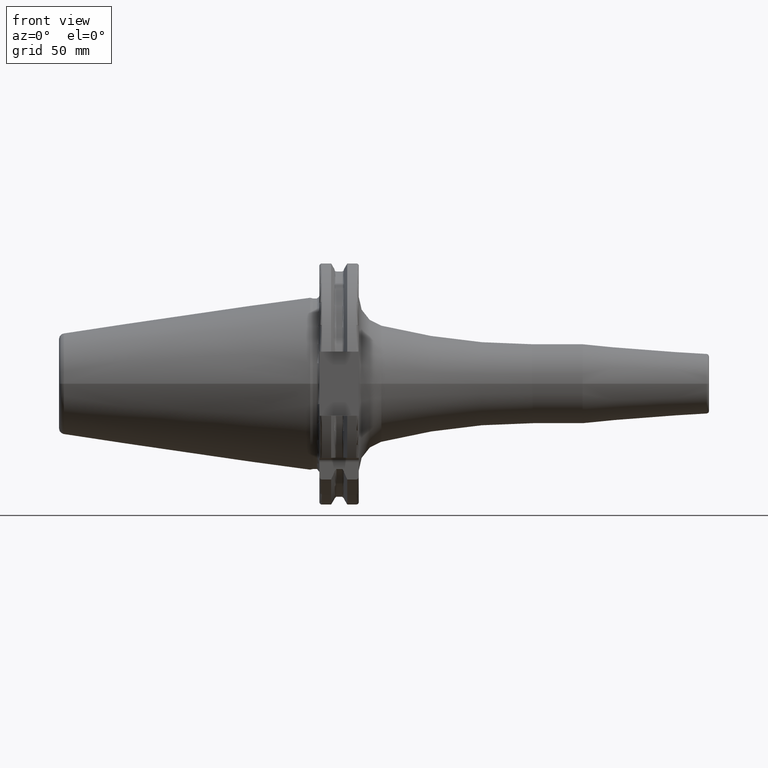
[diagram: clean part render]
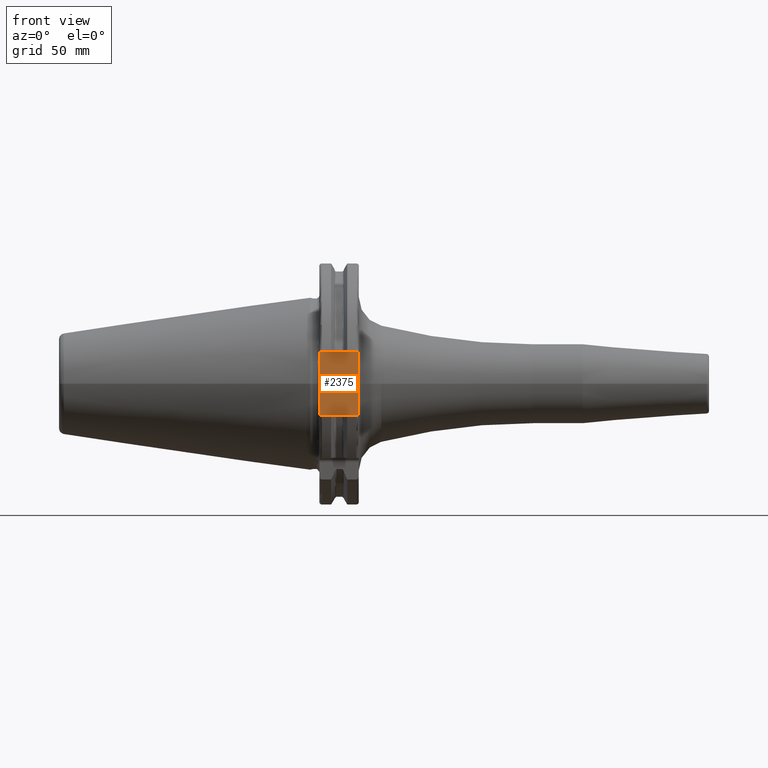
[diagram: same view with one face highlighted and labeled with its STEP entity id]
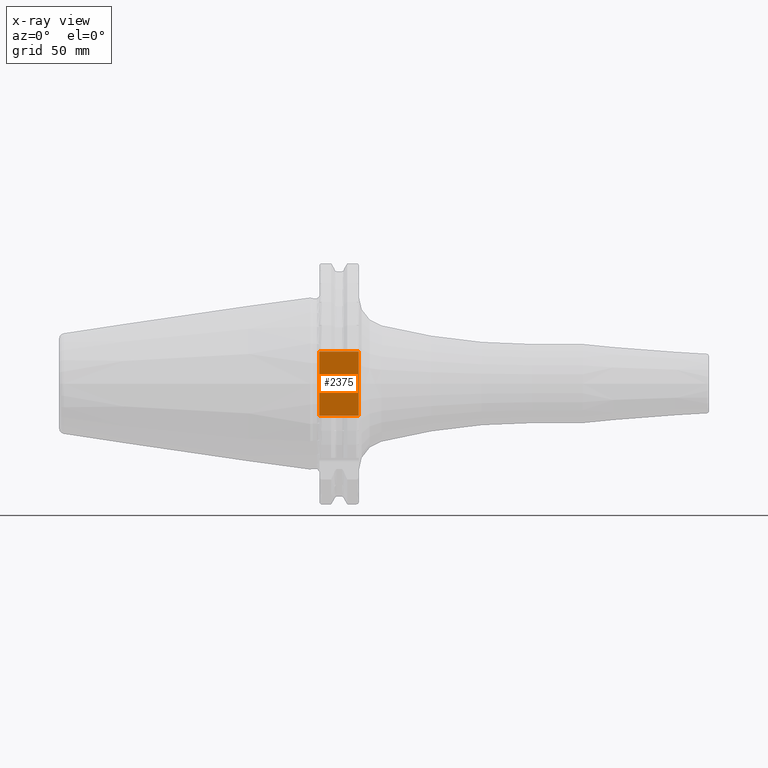
[diagram: x-ray of the same camera — body ghosted, the highlighted face saturated]
A machine part, front view. The second image highlights one B-rep face of the part: STEP entity #2375.
The next image is the same camera in x-ray: the body ghosted, the highlighted face saturated — about 0% of this face is hidden behind the body in this view.
In plain terms, the highlighted planar face has unit normal (0, 1, 0).
Its self-contained STEP definition (entity closure, byte-faithful):
#138=DIRECTION('',(0.E0,0.E0,1.E0));
#139=VECTOR('',#138,2.58E1);
#140=CARTESIAN_POINT('',(1.905E1,-3.75E1,-1.29E1));
#141=LINE('',#140,#139);
#220=DIRECTION('',(0.E0,0.E0,1.E0));
#221=VECTOR('',#220,2.58E1);
#222=CARTESIAN_POINT('',(3.2E0,-3.75E1,-1.29E1));
#223=LINE('',#222,#221);
#347=DIRECTION('',(-1.E0,0.E0,0.E0));
#348=VECTOR('',#347,1.585E1);
#349=CARTESIAN_POINT('',(1.905E1,-3.75E1,1.29E1));
#350=LINE('',#349,#348);
#876=DIRECTION('',(-1.E0,0.E0,0.E0));
#877=VECTOR('',#876,1.585E1);
#878=CARTESIAN_POINT('',(1.905E1,-3.75E1,-1.29E1));
#879=LINE('',#878,#877);
#1357=CARTESIAN_POINT('',(1.905E1,-3.75E1,-1.29E1));
#1359=VERTEX_POINT('',#1357);
#1360=CARTESIAN_POINT('',(1.905E1,-3.75E1,1.29E1));
#1361=VERTEX_POINT('',#1360);
#1385=CARTESIAN_POINT('',(3.2E0,-3.75E1,-1.29E1));
#1387=VERTEX_POINT('',#1385);
#1388=CARTESIAN_POINT('',(3.2E0,-3.75E1,1.29E1));
#1389=VERTEX_POINT('',#1388);
#2364=CARTESIAN_POINT('',(1.905E1,-3.75E1,-1.29E1));
#2365=DIRECTION('',(0.E0,1.E0,0.E0));
#2366=DIRECTION('',(0.E0,0.E0,1.E0));
#2367=AXIS2_PLACEMENT_3D('',#2364,#2365,#2366);
#2368=PLANE('',#2367);
#2369=ORIENTED_EDGE('',*,*,#1667,.F.);
#2370=ORIENTED_EDGE('',*,*,#2222,.T.);
#2371=ORIENTED_EDGE('',*,*,#1762,.T.);
#2372=ORIENTED_EDGE('',*,*,#1976,.F.);
#2373=EDGE_LOOP('',(#2369,#2370,#2371,#2372));
#2374=FACE_OUTER_BOUND('',#2373,.F.);
#2375=ADVANCED_FACE('',(#2374),#2368,.F.);
#1667=EDGE_CURVE('',#1359,#1361,#141,.T.);
#1762=EDGE_CURVE('',#1387,#1389,#223,.T.);
#1976=EDGE_CURVE('',#1361,#1389,#350,.T.);
#2222=EDGE_CURVE('',#1359,#1387,#879,.T.);